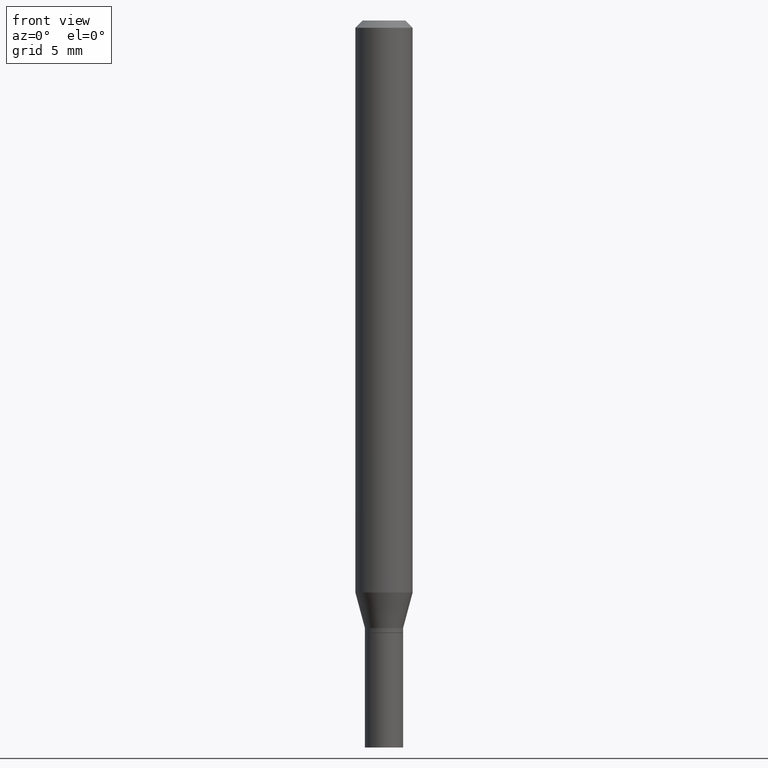
[diagram: clean part render]
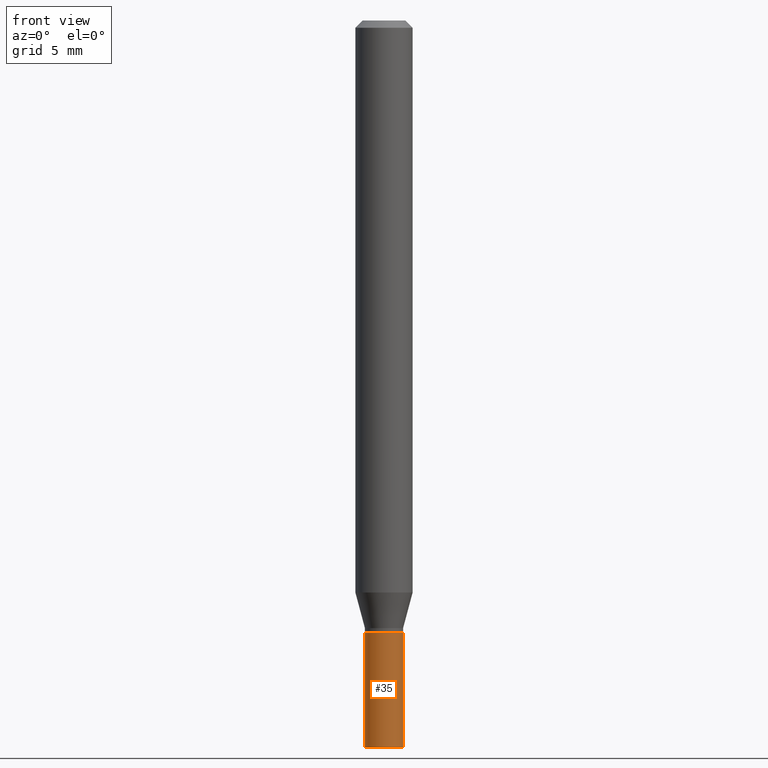
[diagram: same view with one face highlighted and labeled with its STEP entity id]
A machine part, front view. The second image highlights one B-rep face of the part: STEP entity #35.
In plain terms, the highlighted cylindrical surface (edge-blend (fillet) strip) has radius 0.9995 mm, axis along (-0, 0, 1).
Its self-contained STEP definition (entity closure, byte-faithful):
#3 = DIRECTION ( 'NONE',  ( -2.445468806185136597E-29, 3.491481338843145583E-15, 1.000000000000000000 ) ) ;
#27 = DIRECTION ( 'NONE',  ( 1.000000000000000000, -6.982962677686269077E-15, 0.000000000000000000 ) ) ;
#34 = CARTESIAN_POINT ( 'NONE',  ( 0.03935000000000000303, -5.512001589631673094E-15, -1.500000000000000222 ) ) ;
#35 = ADVANCED_FACE ( 'NONE', ( #115 ), #260, .T. ) ;
#37 = CARTESIAN_POINT ( 'NONE',  ( 0.03935000000000000303, -2.747795813669546211E-16, 1.918775561275701074E-30 ) ) ;
#52 = CARTESIAN_POINT ( 'NONE',  ( -0.03935000000000000303, -4.545279495625743861E-15, -1.500000000000000222 ) ) ;
#63 = EDGE_CURVE ( 'NONE', #75, #462, #327, .T. ) ;
#64 = AXIS2_PLACEMENT_3D ( 'NONE', #65, #132, #298 ) ;
#65 = CARTESIAN_POINT ( 'NONE',  ( 3.668203209277704895E-29, -5.237222008264718177E-15, -1.500000000000000222 ) ) ;
#75 = VERTEX_POINT ( 'NONE', #34 ) ;
#87 = VERTEX_POINT ( 'NONE', #108 ) ;
#89 = CARTESIAN_POINT ( 'NONE',  ( -0.03935000000000000303, 2.795985665215994447E-16, -1.935600958015305291E-30 ) ) ;
#107 = ORIENTED_EDGE ( 'NONE', *, *, #63, .T. ) ;
#108 = CARTESIAN_POINT ( 'NONE',  ( -0.03935000000000000303, -4.545279495625743861E-15, -1.263800000000000034 ) ) ;
#115 = FACE_OUTER_BOUND ( 'NONE', #161, .T. ) ;
#132 = DIRECTION ( 'NONE',  ( -2.445468806185136597E-29, 3.491481338843145583E-15, 1.000000000000000000 ) ) ;
#160 = DIRECTION ( 'NONE',  ( -2.445468806185136877E-29, 3.491481338843145188E-15, 1.000000000000000000 ) ) ;
#161 = EDGE_LOOP ( 'NONE', ( #358, #253, #107, #216 ) ) ;
#165 = CIRCLE ( 'NONE', #315, 0.03935000000000000303 ) ;
#200 = EDGE_CURVE ( 'NONE', #245, #87, #406, .T. ) ;
#205 = CARTESIAN_POINT ( 'NONE',  ( 0.03935000000000000303, -4.687313697396922464E-15, -1.263800000000000034 ) ) ;
#216 = ORIENTED_EDGE ( 'NONE', *, *, #426, .F. ) ;
#232 = VECTOR ( 'NONE', #288, 39.37007874015748143 ) ;
#245 = VERTEX_POINT ( 'NONE', #52 ) ;
#253 = ORIENTED_EDGE ( 'NONE', *, *, #416, .T. ) ;
#260 = CYLINDRICAL_SURFACE ( 'NONE', #273, 0.03935000000000000303 ) ;
#273 = AXIS2_PLACEMENT_3D ( 'NONE', #321, #3, #359 ) ;
#283 = CIRCLE ( 'NONE', #64, 0.03935000000000000303 ) ;
#288 = DIRECTION ( 'NONE',  ( -2.445468806185136877E-29, 3.491481338843145188E-15, 1.000000000000000000 ) ) ;
#298 = DIRECTION ( 'NONE',  ( 1.000000000000000000, -6.982962677686269077E-15, 0.000000000000000000 ) ) ;
#315 = AXIS2_PLACEMENT_3D ( 'NONE', #373, #452, #27 ) ;
#321 = CARTESIAN_POINT ( 'NONE',  ( 0.000000000000000000, 0.000000000000000000, 0.000000000000000000 ) ) ;
#327 = LINE ( 'NONE', #37, #232 ) ;
#339 = VECTOR ( 'NONE', #160, 39.37007874015748143 ) ;
#358 = ORIENTED_EDGE ( 'NONE', *, *, #200, .F. ) ;
#359 = DIRECTION ( 'NONE',  ( 1.000000000000000000, -6.982962677686266711E-15, 4.876176775795936353E-29 ) ) ;
#373 = CARTESIAN_POINT ( 'NONE',  ( 3.090583477256776013E-29, -4.412534116029967548E-15, -1.263800000000000034 ) ) ;
#406 = LINE ( 'NONE', #89, #339 ) ;
#416 = EDGE_CURVE ( 'NONE', #245, #75, #283, .T. ) ;
#426 = EDGE_CURVE ( 'NONE', #87, #462, #165, .T. ) ;
#452 = DIRECTION ( 'NONE',  ( -2.445468806185136597E-29, 3.491481338843145583E-15, 1.000000000000000000 ) ) ;
#462 = VERTEX_POINT ( 'NONE', #205 ) ;